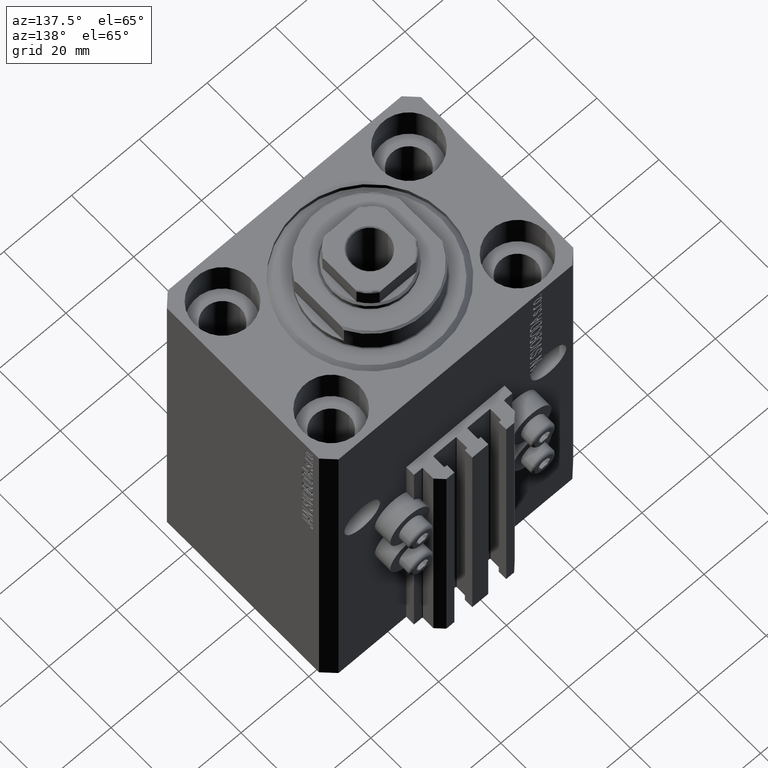
[diagram: clean part render]
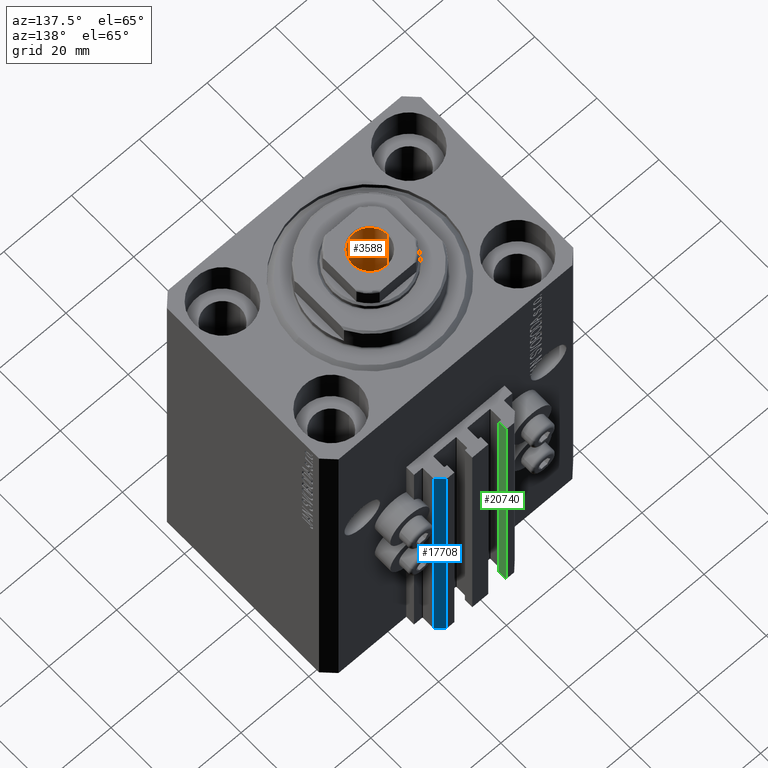
[diagram: same view with three faces highlighted in distinct colors, each labeled with its STEP entity id]
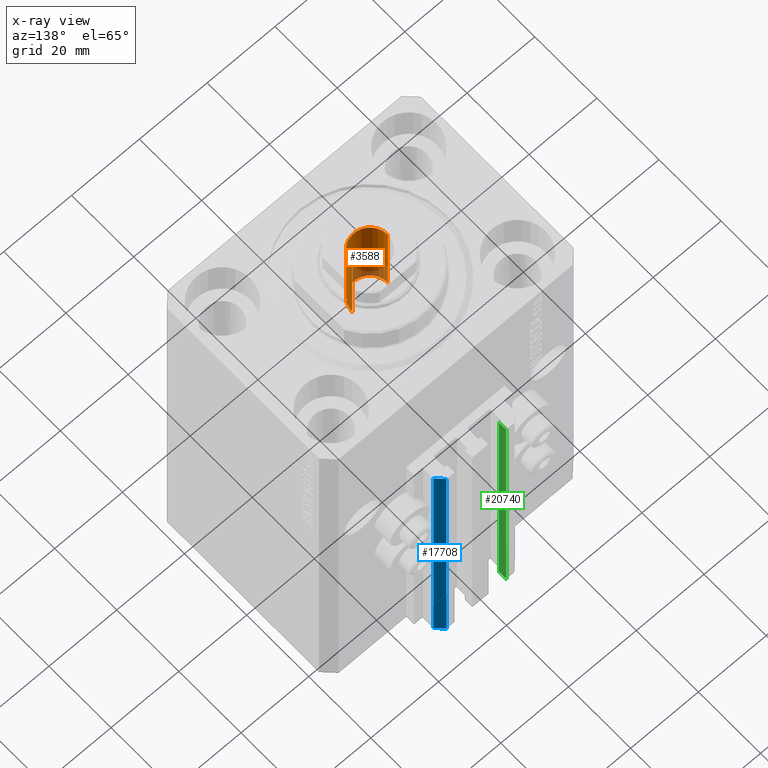
[diagram: x-ray of the same camera — body ghosted, the three highlighted faces saturated]
A machine part, auxiliary view with three faces highlighted in distinct colors.
The next image is the same camera in x-ray (body ghosted, the three faces saturated) — at least one of them is partly hidden behind the body in this view.
Their STEP definitions:

[orange] entity #3588 — the highlighted cylindrical surface (edge-blend (fillet) strip) has radius 5.25 mm, axis along (0, 0, 1).
#1760 = ORIENTED_EDGE ( 'NONE', *, *, #12550, .T. ) ;
#3486 = CIRCLE ( 'NONE', #7241, 5.249999999999995559 ) ;
#3588 = ADVANCED_FACE ( 'NONE', ( #17946 ), #31931, .F. ) ;
#5677 = DIRECTION ( 'NONE',  ( -0.000000000000000000, -0.000000000000000000, 1.000000000000000000 ) ) ;
#5987 = ORIENTED_EDGE ( 'NONE', *, *, #29196, .F. ) ;
#6137 = CARTESIAN_POINT ( 'NONE',  ( -5.249999999999994671, 6.429395695523597250E-16, 90.00000000000000000 ) ) ;
#7241 = AXIS2_PLACEMENT_3D ( 'NONE', #38715, #17635, #13161 ) ;
#7530 = DIRECTION ( 'NONE',  ( -0.000000000000000000, -0.000000000000000000, 1.000000000000000000 ) ) ;
#10619 = AXIS2_PLACEMENT_3D ( 'NONE', #43281, #7530, #18183 ) ;
#10997 = ORIENTED_EDGE ( 'NONE', *, *, #32563, .F. ) ;
#12550 = EDGE_CURVE ( 'NONE', #34075, #44710, #3486, .T. ) ;
#13161 = DIRECTION ( 'NONE',  ( 1.000000000000000000, 0.000000000000000000, 0.000000000000000000 ) ) ;
#13899 = CARTESIAN_POINT ( 'NONE',  ( -5.249999999999995559, 6.429395695523600208E-16, 114.7000000000000028 ) ) ;
#14498 = AXIS2_PLACEMENT_3D ( 'NONE', #31200, #46342, #27651 ) ;
#16422 = LINE ( 'NONE', #45535, #20368 ) ;
#17635 = DIRECTION ( 'NONE',  ( 0.000000000000000000, 0.000000000000000000, 1.000000000000000000 ) ) ;
#17946 = FACE_OUTER_BOUND ( 'NONE', #30032, .T. ) ;
#18183 = DIRECTION ( 'NONE',  ( 1.000000000000000000, 0.000000000000000000, 0.000000000000000000 ) ) ;
#18611 = EDGE_CURVE ( 'NONE', #23936, #34075, #34326, .T. ) ;
#19570 = CARTESIAN_POINT ( 'NONE',  ( 5.249999999999995559, 0.000000000000000000, 114.7000000000000028 ) ) ;
#20368 = VECTOR ( 'NONE', #34880, 1000.000000000000000 ) ;
#23936 = VERTEX_POINT ( 'NONE', #6137 ) ;
#27651 = DIRECTION ( 'NONE',  ( 1.000000000000000000, 0.000000000000000000, 0.000000000000000000 ) ) ;
#28624 = VERTEX_POINT ( 'NONE', #34117 ) ;
#29196 = EDGE_CURVE ( 'NONE', #28624, #44710, #16422, .T. ) ;
#30032 = EDGE_LOOP ( 'NONE', ( #10997, #39392, #1760, #5987 ) ) ;
#31200 = CARTESIAN_POINT ( 'NONE',  ( 0.000000000000000000, 0.000000000000000000, 90.00000000000000000 ) ) ;
#31931 = CYLINDRICAL_SURFACE ( 'NONE', #10619, 5.249999999999995559 ) ;
#32563 = EDGE_CURVE ( 'NONE', #23936, #28624, #36355, .T. ) ;
#34075 = VERTEX_POINT ( 'NONE', #13899 ) ;
#34117 = CARTESIAN_POINT ( 'NONE',  ( 5.249999999999994671, 0.000000000000000000, 90.00000000000000000 ) ) ;
#34326 = LINE ( 'NONE', #38326, #35314 ) ;
#34880 = DIRECTION ( 'NONE',  ( -0.000000000000000000, -0.000000000000000000, 1.000000000000000000 ) ) ;
#35314 = VECTOR ( 'NONE', #5677, 1000.000000000000000 ) ;
#36355 = CIRCLE ( 'NONE', #14498, 5.249999999999994671 ) ;
#38326 = CARTESIAN_POINT ( 'NONE',  ( -5.249999999999995559, 6.429395695523600208E-16, 114.9999999999999858 ) ) ;
#38715 = CARTESIAN_POINT ( 'NONE',  ( 0.000000000000000000, 0.000000000000000000, 114.7000000000000028 ) ) ;
#39392 = ORIENTED_EDGE ( 'NONE', *, *, #18611, .T. ) ;
#43281 = CARTESIAN_POINT ( 'NONE',  ( 0.000000000000000000, 0.000000000000000000, 114.9999999999999858 ) ) ;
#44710 = VERTEX_POINT ( 'NONE', #19570 ) ;
#45535 = CARTESIAN_POINT ( 'NONE',  ( 5.249999999999995559, 0.000000000000000000, 114.9999999999999858 ) ) ;
#46342 = DIRECTION ( 'NONE',  ( -0.000000000000000000, -0.000000000000000000, 1.000000000000000000 ) ) ;

[blue] entity #17708 — the highlighted planar face has unit normal (0.7071, 0.7071, 0).
#1174 = CARTESIAN_POINT ( 'NONE',  ( 12.00000000000000000, 33.50000000000001421, -110.0000000000000000 ) ) ;
#1876 = DIRECTION ( 'NONE',  ( 0.000000000000000000, 0.000000000000000000, 1.000000000000000000 ) ) ;
#1988 = CARTESIAN_POINT ( 'NONE',  ( 12.00000000000000000, 33.50000000000001421, -110.0000000000000000 ) ) ;
#2240 = LINE ( 'NONE', #44635, #41612 ) ;
#2387 = VERTEX_POINT ( 'NONE', #4926 ) ;
#3356 = LINE ( 'NONE', #17793, #43009 ) ;
#3678 = EDGE_CURVE ( 'NONE', #38740, #31900, #2240, .T. ) ;
#4926 = CARTESIAN_POINT ( 'NONE',  ( 9.999999999999998224, 35.50000000000001421, -110.0000000000000000 ) ) ;
#5117 = VECTOR ( 'NONE', #1876, 1000.000000000000000 ) ;
#5192 = FACE_OUTER_BOUND ( 'NONE', #11345, .T. ) ;
#9028 = VERTEX_POINT ( 'NONE', #1988 ) ;
#9449 = PLANE ( 'NONE',  #45127 ) ;
#10081 = LINE ( 'NONE', #31381, #35893 ) ;
#11345 = EDGE_LOOP ( 'NONE', ( #34023, #22124, #46285, #14782 ) ) ;
#13319 = EDGE_CURVE ( 'NONE', #9028, #2387, #10081, .T. ) ;
#14782 = ORIENTED_EDGE ( 'NONE', *, *, #26382, .T. ) ;
#15417 = CARTESIAN_POINT ( 'NONE',  ( 9.999999999999998224, 35.50000000000001421, -33.00000000000000000 ) ) ;
#16096 = DIRECTION ( 'NONE',  ( -0.7071067811865474617, 0.7071067811865474617, 0.000000000000000000 ) ) ;
#17708 = ADVANCED_FACE ( 'NONE', ( #5192 ), #9449, .T. ) ;
#17793 = CARTESIAN_POINT ( 'NONE',  ( 9.999999999999998224, 35.50000000000001421, -110.0000000000000000 ) ) ;
#20024 = EDGE_CURVE ( 'NONE', #9028, #38740, #30290, .T. ) ;
#22124 = ORIENTED_EDGE ( 'NONE', *, *, #20024, .F. ) ;
#24357 = CARTESIAN_POINT ( 'NONE',  ( 12.00000000000000000, 33.50000000000001421, -33.00000000000000000 ) ) ;
#26382 = EDGE_CURVE ( 'NONE', #2387, #31900, #3356, .T. ) ;
#28065 = DIRECTION ( 'NONE',  ( -0.7071067811865474617, 0.7071067811865474617, 0.000000000000000000 ) ) ;
#30290 = LINE ( 'NONE', #1174, #5117 ) ;
#31381 = CARTESIAN_POINT ( 'NONE',  ( 12.00000000000000000, 33.50000000000001421, -110.0000000000000000 ) ) ;
#31900 = VERTEX_POINT ( 'NONE', #15417 ) ;
#32229 = DIRECTION ( 'NONE',  ( 0.000000000000000000, 0.000000000000000000, 1.000000000000000000 ) ) ;
#33750 = DIRECTION ( 'NONE',  ( -0.7071067811865474617, 0.7071067811865474617, 0.000000000000000000 ) ) ;
#34023 = ORIENTED_EDGE ( 'NONE', *, *, #3678, .F. ) ;
#34081 = DIRECTION ( 'NONE',  ( 0.7071067811865475727, 0.7071067811865475727, -0.000000000000000000 ) ) ;
#35893 = VECTOR ( 'NONE', #28065, 1000.000000000000114 ) ;
#38740 = VERTEX_POINT ( 'NONE', #24357 ) ;
#41612 = VECTOR ( 'NONE', #33750, 1000.000000000000114 ) ;
#41639 = CARTESIAN_POINT ( 'NONE',  ( 12.00000000000000000, 33.50000000000001421, -110.0000000000000000 ) ) ;
#43009 = VECTOR ( 'NONE', #32229, 1000.000000000000000 ) ;
#44635 = CARTESIAN_POINT ( 'NONE',  ( 12.00000000000000000, 33.50000000000001421, -33.00000000000000000 ) ) ;
#45127 = AXIS2_PLACEMENT_3D ( 'NONE', #41639, #34081, #16096 ) ;
#46285 = ORIENTED_EDGE ( 'NONE', *, *, #13319, .T. ) ;

[green] entity #20740 — the highlighted planar face has unit normal (1, 0, 0).
#1188 = DIRECTION ( 'NONE',  ( 0.000000000000000000, 1.000000000000000000, 0.000000000000000000 ) ) ;
#2004 = EDGE_CURVE ( 'NONE', #35737, #23006, #28899, .T. ) ;
#2771 = DIRECTION ( 'NONE',  ( 0.000000000000000000, 0.000000000000000000, 1.000000000000000000 ) ) ;
#2995 = LINE ( 'NONE', #35202, #39711 ) ;
#4991 = LINE ( 'NONE', #19428, #23595 ) ;
#8582 = PLANE ( 'NONE',  #40685 ) ;
#10931 = ORIENTED_EDGE ( 'NONE', *, *, #21686, .F. ) ;
#11298 = EDGE_CURVE ( 'NONE', #23006, #26636, #2995, .T. ) ;
#12089 = ORIENTED_EDGE ( 'NONE', *, *, #11298, .T. ) ;
#17258 = VECTOR ( 'NONE', #31742, 1000.000000000000000 ) ;
#17394 = CARTESIAN_POINT ( 'NONE',  ( -7.650000000000000355, 33.09999999999999432, -33.00000000000000000 ) ) ;
#18749 = FACE_OUTER_BOUND ( 'NONE', #26351, .T. ) ;
#19230 = DIRECTION ( 'NONE',  ( 0.000000000000000000, 0.000000000000000000, -1.000000000000000000 ) ) ;
#19428 = CARTESIAN_POINT ( 'NONE',  ( -7.650000000000000355, 33.09999999999999432, -33.00000000000000000 ) ) ;
#19462 = DIRECTION ( 'NONE',  ( 1.000000000000000000, 0.000000000000000000, 0.000000000000000000 ) ) ;
#20740 = ADVANCED_FACE ( 'NONE', ( #18749 ), #8582, .T. ) ;
#21686 = EDGE_CURVE ( 'NONE', #35737, #44005, #35301, .T. ) ;
#22303 = CARTESIAN_POINT ( 'NONE',  ( -7.650000000000000355, 33.09999999999999432, -110.0000000000000000 ) ) ;
#23006 = VERTEX_POINT ( 'NONE', #44868 ) ;
#23031 = ORIENTED_EDGE ( 'NONE', *, *, #2004, .T. ) ;
#23595 = VECTOR ( 'NONE', #31469, 1000.000000000000000 ) ;
#25304 = CARTESIAN_POINT ( 'NONE',  ( -7.650000000000000355, 35.50000000000000000, -33.00000000000000000 ) ) ;
#25651 = ORIENTED_EDGE ( 'NONE', *, *, #33757, .F. ) ;
#26351 = EDGE_LOOP ( 'NONE', ( #25651, #10931, #23031, #12089 ) ) ;
#26636 = VERTEX_POINT ( 'NONE', #25304 ) ;
#28204 = CARTESIAN_POINT ( 'NONE',  ( -7.650000000000000355, 33.09999999999999432, -110.0000000000000000 ) ) ;
#28899 = LINE ( 'NONE', #44500, #43206 ) ;
#31469 = DIRECTION ( 'NONE',  ( 0.000000000000000000, 1.000000000000000000, 0.000000000000000000 ) ) ;
#31742 = DIRECTION ( 'NONE',  ( 0.000000000000000000, 0.000000000000000000, 1.000000000000000000 ) ) ;
#33757 = EDGE_CURVE ( 'NONE', #44005, #26636, #4991, .T. ) ;
#35202 = CARTESIAN_POINT ( 'NONE',  ( -7.650000000000000355, 35.50000000000000000, -110.0000000000000000 ) ) ;
#35301 = LINE ( 'NONE', #28204, #17258 ) ;
#35737 = VERTEX_POINT ( 'NONE', #43135 ) ;
#39711 = VECTOR ( 'NONE', #2771, 1000.000000000000000 ) ;
#40685 = AXIS2_PLACEMENT_3D ( 'NONE', #22303, #19462, #19230 ) ;
#43135 = CARTESIAN_POINT ( 'NONE',  ( -7.650000000000000355, 33.09999999999999432, -110.0000000000000000 ) ) ;
#43206 = VECTOR ( 'NONE', #1188, 1000.000000000000000 ) ;
#44005 = VERTEX_POINT ( 'NONE', #17394 ) ;
#44500 = CARTESIAN_POINT ( 'NONE',  ( -7.650000000000000355, 33.09999999999999432, -110.0000000000000000 ) ) ;
#44868 = CARTESIAN_POINT ( 'NONE',  ( -7.650000000000000355, 35.50000000000000000, -110.0000000000000000 ) ) ;